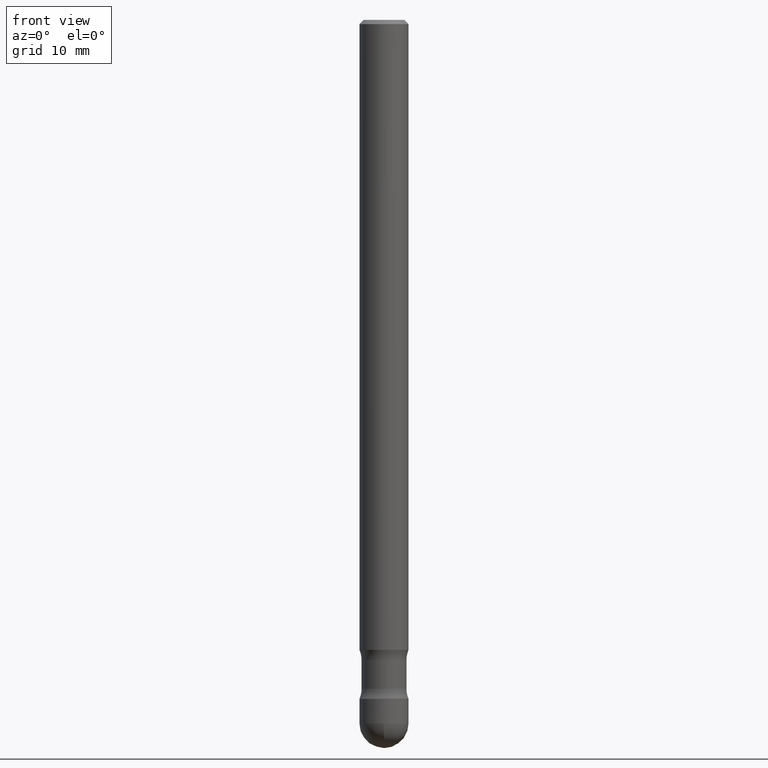
[diagram: clean part render]
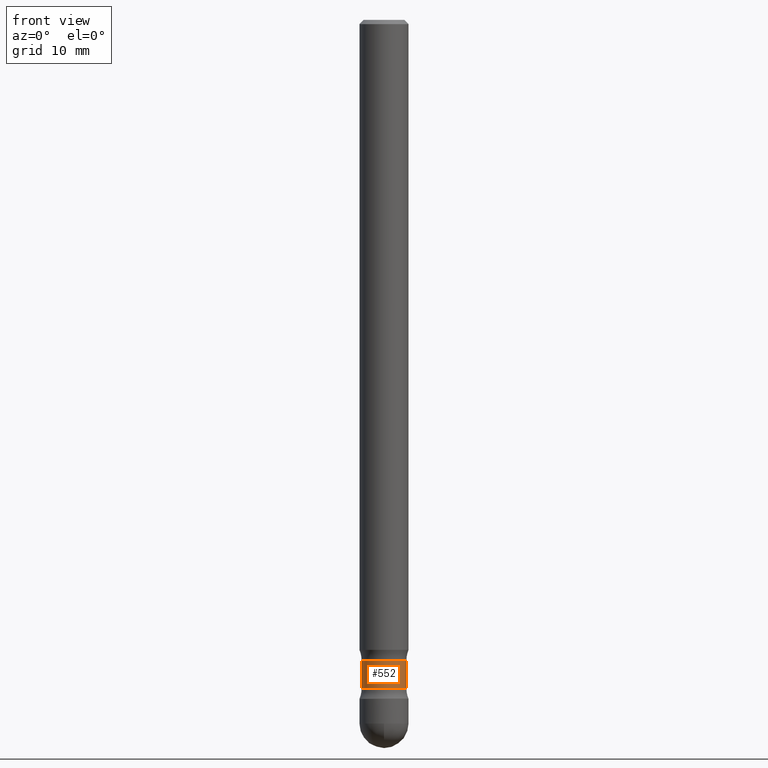
[diagram: same view with one face highlighted and labeled with its STEP entity id]
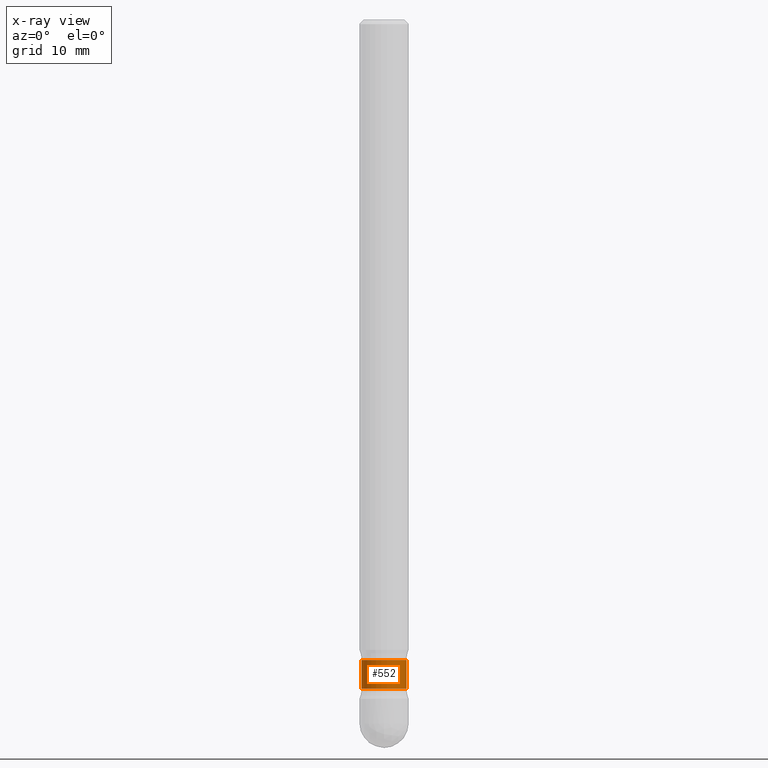
[diagram: x-ray of the same camera — body ghosted, the highlighted face saturated]
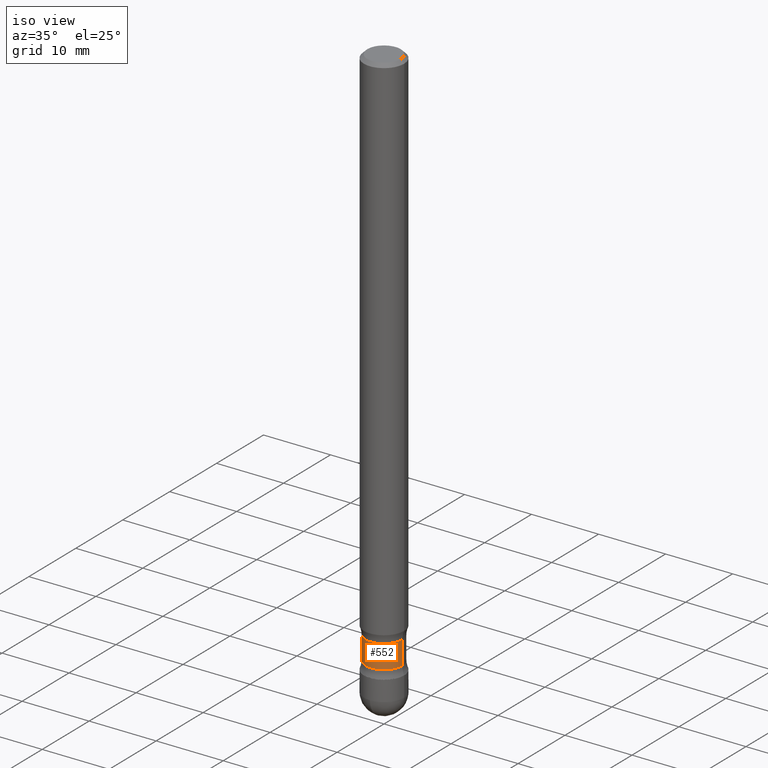
[diagram: same view with one face highlighted and labeled with its STEP entity id]
A machine part, front view. The second image highlights one B-rep face of the part: STEP entity #552.
The next image is the same camera in x-ray: the body ghosted, the highlighted face saturated — about 0% of this face is hidden behind the body in this view.
A second angle (iso view) of the same face is appended — the face is thin or edge-on in the first view.
In plain terms, the highlighted cylindrical surface (edge-blend (fillet) strip) has radius 2.7432 mm, axis along (0, -0, -1).
Its self-contained STEP definition (entity closure, byte-faithful):
#2 = VERTEX_POINT ( 'NONE', #283 ) ;
#19 = VERTEX_POINT ( 'NONE', #189 ) ;
#22 = EDGE_CURVE ( 'NONE', #2, #19, #506, .T. ) ;
#34 = FACE_OUTER_BOUND ( 'NONE', #152, .T. ) ;
#42 = CARTESIAN_POINT ( 'NONE',  ( 7.870682963910265403E-29, -1.123724932533975948E-14, -3.218476123679660628 ) ) ;
#51 = ORIENTED_EDGE ( 'NONE', *, *, #235, .T. ) ;
#58 = CARTESIAN_POINT ( 'NONE',  ( 0.1079999999999993604, -1.215004735469706713E-14, -3.267699999999999605 ) ) ;
#78 = DIRECTION ( 'NONE',  ( 2.445468806185136597E-29, -3.491481338843145583E-15, -1.000000000000000000 ) ) ;
#88 = VERTEX_POINT ( 'NONE', #205 ) ;
#121 = DIRECTION ( 'NONE',  ( -1.000000000000000000, 6.982962677686269866E-15, 0.000000000000000000 ) ) ;
#126 = EDGE_CURVE ( 'NONE', #466, #19, #512, .T. ) ;
#129 = DIRECTION ( 'NONE',  ( 2.445468806185136597E-29, -3.491481338843145583E-15, -1.000000000000000000 ) ) ;
#152 = EDGE_LOOP ( 'NONE', ( #409, #51, #312, #461 ) ) ;
#172 = VECTOR ( 'NONE', #507, 39.37007874015748143 ) ;
#189 = CARTESIAN_POINT ( 'NONE',  ( -0.1079999999999993049, -1.048308935614964628E-14, -3.218476123679660628 ) ) ;
#205 = CARTESIAN_POINT ( 'NONE',  ( 0.1079999999999994298, -1.144593710015005919E-14, -3.080723876320338395 ) ) ;
#206 = DIRECTION ( 'NONE',  ( 2.445468806185136597E-29, -3.491481338843145583E-15, -1.000000000000000000 ) ) ;
#216 = VECTOR ( 'NONE', #379, 39.37007874015748143 ) ;
#235 = EDGE_CURVE ( 'NONE', #88, #2, #413, .T. ) ;
#244 = CARTESIAN_POINT ( 'NONE',  ( 7.991058417971169471E-29, -1.140911357093774486E-14, -3.267699999999999605 ) ) ;
#245 = AXIS2_PLACEMENT_3D ( 'NONE', #344, #129, #398 ) ;
#256 = AXIS2_PLACEMENT_3D ( 'NONE', #42, #78, #121 ) ;
#279 = AXIS2_PLACEMENT_3D ( 'NONE', #244, #206, #298 ) ;
#283 = CARTESIAN_POINT ( 'NONE',  ( -0.1079999999999994298, -1.000212995511086877E-14, -3.080723876320338395 ) ) ;
#298 = DIRECTION ( 'NONE',  ( -1.000000000000000000, 6.982962677686266711E-15, 0.000000000000000000 ) ) ;
#312 = ORIENTED_EDGE ( 'NONE', *, *, #22, .T. ) ;
#344 = CARTESIAN_POINT ( 'NONE',  ( 7.533814140011144657E-29, -1.075628992430098040E-14, -3.080723876320338395 ) ) ;
#347 = CYLINDRICAL_SURFACE ( 'NONE', #279, 0.1079999999999993604 ) ;
#379 = DIRECTION ( 'NONE',  ( 2.445468806185136877E-29, -3.491481338843145188E-15, -1.000000000000000000 ) ) ;
#381 = LINE ( 'NONE', #58, #172 ) ;
#398 = DIRECTION ( 'NONE',  ( -1.000000000000000000, 6.982962677686261977E-15, 0.000000000000000000 ) ) ;
#409 = ORIENTED_EDGE ( 'NONE', *, *, #436, .F. ) ;
#413 = CIRCLE ( 'NONE', #245, 0.1079999999999994298 ) ;
#436 = EDGE_CURVE ( 'NONE', #88, #466, #381, .T. ) ;
#461 = ORIENTED_EDGE ( 'NONE', *, *, #126, .F. ) ;
#466 = VERTEX_POINT ( 'NONE', #505 ) ;
#505 = CARTESIAN_POINT ( 'NONE',  ( 0.1079999999999993049, -1.173770340857968984E-14, -3.218476123679660628 ) ) ;
#506 = LINE ( 'NONE', #542, #216 ) ;
#507 = DIRECTION ( 'NONE',  ( 2.445468806185136877E-29, -3.491481338843145188E-15, -1.000000000000000000 ) ) ;
#512 = CIRCLE ( 'NONE', #256, 0.1079999999999993049 ) ;
#542 = CARTESIAN_POINT ( 'NONE',  ( -0.1079999999999993604, -1.065495360174763323E-14, -3.267699999999999605 ) ) ;
#552 = ADVANCED_FACE ( 'NONE', ( #34 ), #347, .T. ) ;